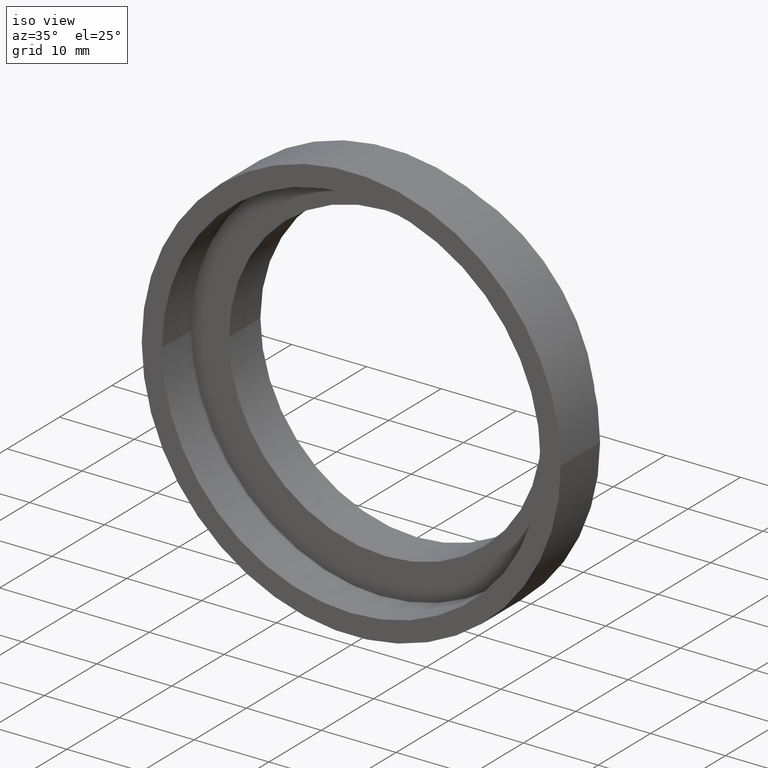
[diagram: clean part render]
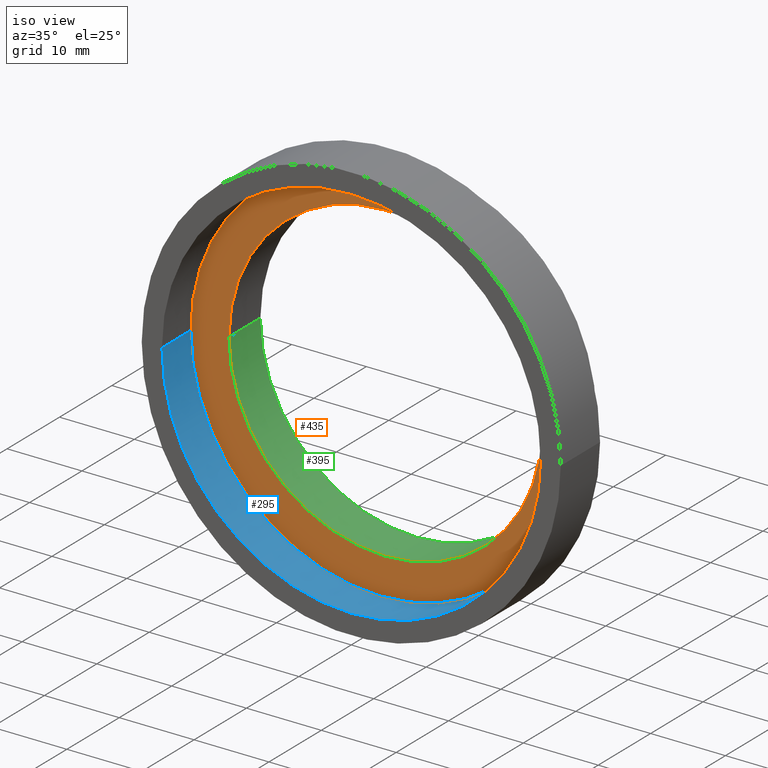
[diagram: same view with three faces highlighted in distinct colors, each labeled with its STEP entity id]
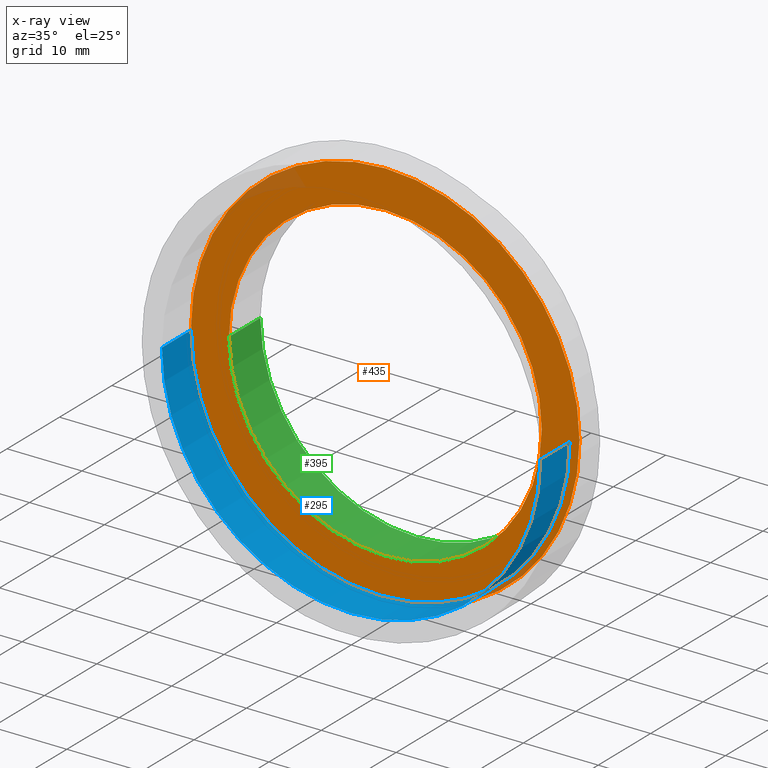
[diagram: x-ray of the same camera — body ghosted, the three highlighted faces saturated]
A machine part, iso view with three faces highlighted in distinct colors.
The next image is the same camera in x-ray (body ghosted, the three faces saturated) — at least one of them is partly hidden behind the body in this view.
Their STEP definitions:

[orange] entity #435 — the highlighted planar face has unit normal (-0, 1, 0).
#1 = DIRECTION ( 'NONE',  ( -1.000000000000000000, -1.245016848787182300E-016, 0.0000000000000000000 ) ) ;
#14 = CIRCLE ( 'NONE', #44, 25.94999999999999900 ) ;
#15 = DIRECTION ( 'NONE',  ( -1.224646799147351000E-016, 1.000000000000000000, -0.0000000000000000000 ) ) ;
#42 = DIRECTION ( 'NONE',  ( -1.224646799147351000E-016, 1.000000000000000000, -0.0000000000000000000 ) ) ;
#44 = AXIS2_PLACEMENT_3D ( 'NONE', #592, #305, #413 ) ;
#48 = EDGE_CURVE ( 'NONE', #565, #531, #244, .T. ) ;
#53 = DIRECTION ( 'NONE',  ( -1.000000000000000000, -1.245016848787182300E-016, 0.0000000000000000000 ) ) ;
#67 = EDGE_LOOP ( 'NONE', ( #315, #128 ) ) ;
#97 = FACE_OUTER_BOUND ( 'NONE', #67, .T. ) ;
#112 = AXIS2_PLACEMENT_3D ( 'NONE', #312, #500, #309 ) ;
#124 = FACE_BOUND ( 'NONE', #536, .T. ) ;
#128 = ORIENTED_EDGE ( 'NONE', *, *, #581, .F. ) ;
#134 = AXIS2_PLACEMENT_3D ( 'NONE', #337, #42, #1 ) ;
#202 = CARTESIAN_POINT ( 'NONE',  ( -20.89999999999999900, 6.499999999999994700, 0.0000000000000000000 ) ) ;
#214 = CARTESIAN_POINT ( 'NONE',  ( 25.94999999999999900, 6.499999999999999100, 3.177958443787381900E-015 ) ) ;
#225 = VERTEX_POINT ( 'NONE', #214 ) ;
#244 = CIRCLE ( 'NONE', #403, 20.89999999999999900 ) ;
#247 = CIRCLE ( 'NONE', #134, 20.89999999999999900 ) ;
#250 = CARTESIAN_POINT ( 'NONE',  ( 20.89999999999999900, 6.499999999999999100, 0.0000000000000000000 ) ) ;
#296 = DIRECTION ( 'NONE',  ( -1.224646799147351000E-016, 1.000000000000000000, 0.0000000000000000000 ) ) ;
#305 = DIRECTION ( 'NONE',  ( -1.224646799147351000E-016, 1.000000000000000000, -0.0000000000000000000 ) ) ;
#309 = DIRECTION ( 'NONE',  ( -1.000000000000000000, -1.336973777246094200E-016, 0.0000000000000000000 ) ) ;
#312 = CARTESIAN_POINT ( 'NONE',  ( 1.271920398992858200E-015, 6.499999999999995600, 0.0000000000000000000 ) ) ;
#315 = ORIENTED_EDGE ( 'NONE', *, *, #597, .F. ) ;
#337 = CARTESIAN_POINT ( 'NONE',  ( 1.271920398992858000E-015, 6.499999999999997300, 0.0000000000000000000 ) ) ;
#339 = DIRECTION ( 'NONE',  ( -1.000000000000000000, -1.224646799147351000E-016, 0.0000000000000000000 ) ) ;
#354 = CARTESIAN_POINT ( 'NONE',  ( 1.271920398992858000E-015, 6.499999999999997300, 0.0000000000000000000 ) ) ;
#356 = CARTESIAN_POINT ( 'NONE',  ( -25.94999999999999900, 6.499999999999992000, 0.0000000000000000000 ) ) ;
#369 = CIRCLE ( 'NONE', #112, 25.94999999999999900 ) ;
#394 = PLANE ( 'NONE',  #540 ) ;
#403 = AXIS2_PLACEMENT_3D ( 'NONE', #354, #15, #53 ) ;
#413 = DIRECTION ( 'NONE',  ( -1.000000000000000000, -1.336973777246094200E-016, 0.0000000000000000000 ) ) ;
#435 = ADVANCED_FACE ( 'NONE', ( #97, #124 ), #394, .F. ) ;
#459 = ORIENTED_EDGE ( 'NONE', *, *, #48, .T. ) ;
#465 = EDGE_CURVE ( 'NONE', #531, #565, #247, .T. ) ;
#483 = ORIENTED_EDGE ( 'NONE', *, *, #465, .T. ) ;
#500 = DIRECTION ( 'NONE',  ( -1.224646799147351000E-016, 1.000000000000000000, -0.0000000000000000000 ) ) ;
#531 = VERTEX_POINT ( 'NONE', #577 ) ;
#536 = EDGE_LOOP ( 'NONE', ( #459, #483 ) ) ;
#540 = AXIS2_PLACEMENT_3D ( 'NONE', #250, #296, #339 ) ;
#565 = VERTEX_POINT ( 'NONE', #202 ) ;
#577 = CARTESIAN_POINT ( 'NONE',  ( 20.89999999999999900, 6.500000000000000000, 2.559511810217968300E-015 ) ) ;
#581 = EDGE_CURVE ( 'NONE', #225, #600, #369, .T. ) ;
#592 = CARTESIAN_POINT ( 'NONE',  ( 1.271920398992858200E-015, 6.499999999999995600, 0.0000000000000000000 ) ) ;
#597 = EDGE_CURVE ( 'NONE', #600, #225, #14, .T. ) ;
#600 = VERTEX_POINT ( 'NONE', #356 ) ;

[blue] entity #295 — the highlighted cylindrical surface (partial cylindrical patch) has radius 25.3 mm, axis along (-0, 1, -0).
#8 = CARTESIAN_POINT ( 'NONE',  ( -25.30000000000000400, 5.499999999999991100, 0.0000000000000000000 ) ) ;
#9 = CARTESIAN_POINT ( 'NONE',  ( 25.30000000000000400, 5.499999999999998200, 3.098356401842804300E-015 ) ) ;
#22 = LINE ( 'NONE', #421, #610 ) ;
#72 = CARTESIAN_POINT ( 'NONE',  ( -25.29999999999999700, -6.567803353796412200E-015, 0.0000000000000000000 ) ) ;
#101 = DIRECTION ( 'NONE',  ( -1.224646799147351000E-016, 1.000000000000000000, -0.0000000000000000000 ) ) ;
#109 = CARTESIAN_POINT ( 'NONE',  ( -25.30000000000000400, 16.88601823708207300, 0.0000000000000000000 ) ) ;
#120 = CARTESIAN_POINT ( 'NONE',  ( 0.0000000000000000000, 16.88601823708207700, 0.0000000000000000000 ) ) ;
#126 = EDGE_CURVE ( 'NONE', #201, #153, #333, .T. ) ;
#139 = FACE_OUTER_BOUND ( 'NONE', #362, .T. ) ;
#153 = VERTEX_POINT ( 'NONE', #8 ) ;
#155 = CYLINDRICAL_SURFACE ( 'NONE', #510, 25.30000000000000400 ) ;
#158 = CARTESIAN_POINT ( 'NONE',  ( 2.067940818438636500E-015, -3.469446951953614200E-015, 0.0000000000000000000 ) ) ;
#201 = VERTEX_POINT ( 'NONE', #72 ) ;
#213 = ORIENTED_EDGE ( 'NONE', *, *, #316, .T. ) ;
#221 = DIRECTION ( 'NONE',  ( -1.224646799147351000E-016, 1.000000000000000000, -0.0000000000000000000 ) ) ;
#292 = CIRCLE ( 'NONE', #328, 25.30000000000000400 ) ;
#295 = ADVANCED_FACE ( 'NONE', ( #139 ), #155, .F. ) ;
#299 = ORIENTED_EDGE ( 'NONE', *, *, #430, .T. ) ;
#316 = EDGE_CURVE ( 'NONE', #398, #613, #22, .T. ) ;
#318 = DIRECTION ( 'NONE',  ( -1.000000000000000000, -1.371322905910519200E-016, 0.0000000000000000000 ) ) ;
#328 = AXIS2_PLACEMENT_3D ( 'NONE', #442, #101, #391 ) ;
#333 = LINE ( 'NONE', #109, #408 ) ;
#344 = CIRCLE ( 'NONE', #605, 25.30000000000000100 ) ;
#362 = EDGE_LOOP ( 'NONE', ( #506, #213, #299, #407 ) ) ;
#391 = DIRECTION ( 'NONE',  ( -1.000000000000000000, -1.371322905910519200E-016, 0.0000000000000000000 ) ) ;
#398 = VERTEX_POINT ( 'NONE', #564 ) ;
#407 = ORIENTED_EDGE ( 'NONE', *, *, #126, .F. ) ;
#408 = VECTOR ( 'NONE', #447, 1000.000000000000000 ) ;
#421 = CARTESIAN_POINT ( 'NONE',  ( 25.30000000000000400, 16.88601823708208000, 3.098356401842804300E-015 ) ) ;
#430 = EDGE_CURVE ( 'NONE', #613, #153, #292, .T. ) ;
#442 = CARTESIAN_POINT ( 'NONE',  ( 1.394385078907593400E-015, 5.499999999999994700, 0.0000000000000000000 ) ) ;
#447 = DIRECTION ( 'NONE',  ( -1.224646799147351000E-016, 1.000000000000000000, -0.0000000000000000000 ) ) ;
#493 = DIRECTION ( 'NONE',  ( -1.224646799147351000E-016, 1.000000000000000000, -0.0000000000000000000 ) ) ;
#495 = DIRECTION ( 'NONE',  ( -1.000000000000000000, -1.224646799147351000E-016, 0.0000000000000000000 ) ) ;
#506 = ORIENTED_EDGE ( 'NONE', *, *, #569, .F. ) ;
#510 = AXIS2_PLACEMENT_3D ( 'NONE', #120, #596, #318 ) ;
#564 = CARTESIAN_POINT ( 'NONE',  ( 25.30000000000000400, -3.710905501108162000E-016, 3.098356401842804300E-015 ) ) ;
#569 = EDGE_CURVE ( 'NONE', #398, #201, #344, .T. ) ;
#596 = DIRECTION ( 'NONE',  ( -1.224646799147351000E-016, 1.000000000000000000, -0.0000000000000000000 ) ) ;
#605 = AXIS2_PLACEMENT_3D ( 'NONE', #158, #493, #495 ) ;
#610 = VECTOR ( 'NONE', #221, 1000.000000000000000 ) ;
#613 = VERTEX_POINT ( 'NONE', #9 ) ;

[green] entity #395 — the highlighted cylindrical surface (partial cylindrical patch) has radius 20.9 mm, axis along (-0, 1, -0).
#1 = DIRECTION ( 'NONE',  ( -1.000000000000000000, -1.245016848787182300E-016, 0.0000000000000000000 ) ) ;
#31 = DIRECTION ( 'NONE',  ( -1.000000000000000000, -1.660022465049576300E-016, 0.0000000000000000000 ) ) ;
#42 = DIRECTION ( 'NONE',  ( -1.224646799147351000E-016, 1.000000000000000000, -0.0000000000000000000 ) ) ;
#52 = VECTOR ( 'NONE', #415, 1000.000000000000000 ) ;
#74 = CARTESIAN_POINT ( 'NONE',  ( -20.89999999999999900, 16.88601823708207300, 0.0000000000000000000 ) ) ;
#78 = EDGE_LOOP ( 'NONE', ( #190, #518, #479, #324 ) ) ;
#86 = AXIS2_PLACEMENT_3D ( 'NONE', #603, #608, #31 ) ;
#134 = AXIS2_PLACEMENT_3D ( 'NONE', #337, #42, #1 ) ;
#135 = VERTEX_POINT ( 'NONE', #494 ) ;
#163 = FACE_OUTER_BOUND ( 'NONE', #78, .T. ) ;
#171 = CARTESIAN_POINT ( 'NONE',  ( 5.371323195044473300E-016, 12.49999999999999600, 0.0000000000000000000 ) ) ;
#176 = CARTESIAN_POINT ( 'NONE',  ( 20.89999999999999900, 16.88601823708208000, 2.559511810217968300E-015 ) ) ;
#190 = ORIENTED_EDGE ( 'NONE', *, *, #465, .F. ) ;
#202 = CARTESIAN_POINT ( 'NONE',  ( -20.89999999999999900, 6.499999999999994700, 0.0000000000000000000 ) ) ;
#233 = EDGE_CURVE ( 'NONE', #531, #449, #390, .T. ) ;
#247 = CIRCLE ( 'NONE', #134, 20.89999999999999900 ) ;
#262 = EDGE_CURVE ( 'NONE', #449, #135, #402, .T. ) ;
#285 = EDGE_CURVE ( 'NONE', #565, #135, #595, .T. ) ;
#323 = DIRECTION ( 'NONE',  ( -1.224646799147351000E-016, 1.000000000000000000, -0.0000000000000000000 ) ) ;
#324 = ORIENTED_EDGE ( 'NONE', *, *, #285, .F. ) ;
#337 = CARTESIAN_POINT ( 'NONE',  ( 1.271920398992858000E-015, 6.499999999999997300, 0.0000000000000000000 ) ) ;
#348 = CARTESIAN_POINT ( 'NONE',  ( 20.89999999999999900, 12.49999999999999800, 2.559511810217968300E-015 ) ) ;
#390 = LINE ( 'NONE', #176, #578 ) ;
#395 = ADVANCED_FACE ( 'NONE', ( #163 ), #452, .F. ) ;
#402 = CIRCLE ( 'NONE', #492, 20.89999999999999900 ) ;
#415 = DIRECTION ( 'NONE',  ( -1.224646799147351000E-016, 1.000000000000000000, -0.0000000000000000000 ) ) ;
#449 = VERTEX_POINT ( 'NONE', #348 ) ;
#452 = CYLINDRICAL_SURFACE ( 'NONE', #86, 20.89999999999999900 ) ;
#465 = EDGE_CURVE ( 'NONE', #531, #565, #247, .T. ) ;
#479 = ORIENTED_EDGE ( 'NONE', *, *, #262, .T. ) ;
#492 = AXIS2_PLACEMENT_3D ( 'NONE', #171, #323, #503 ) ;
#494 = CARTESIAN_POINT ( 'NONE',  ( -20.89999999999999900, 12.49999999999999500, 0.0000000000000000000 ) ) ;
#503 = DIRECTION ( 'NONE',  ( -1.000000000000000000, -8.300112325247881300E-017, 0.0000000000000000000 ) ) ;
#518 = ORIENTED_EDGE ( 'NONE', *, *, #233, .T. ) ;
#531 = VERTEX_POINT ( 'NONE', #577 ) ;
#565 = VERTEX_POINT ( 'NONE', #202 ) ;
#577 = CARTESIAN_POINT ( 'NONE',  ( 20.89999999999999900, 6.500000000000000000, 2.559511810217968300E-015 ) ) ;
#578 = VECTOR ( 'NONE', #602, 1000.000000000000000 ) ;
#595 = LINE ( 'NONE', #74, #52 ) ;
#602 = DIRECTION ( 'NONE',  ( -1.224646799147351000E-016, 1.000000000000000000, -0.0000000000000000000 ) ) ;
#603 = CARTESIAN_POINT ( 'NONE',  ( 0.0000000000000000000, 16.88601823708207700, 0.0000000000000000000 ) ) ;
#608 = DIRECTION ( 'NONE',  ( -1.224646799147351000E-016, 1.000000000000000000, -0.0000000000000000000 ) ) ;